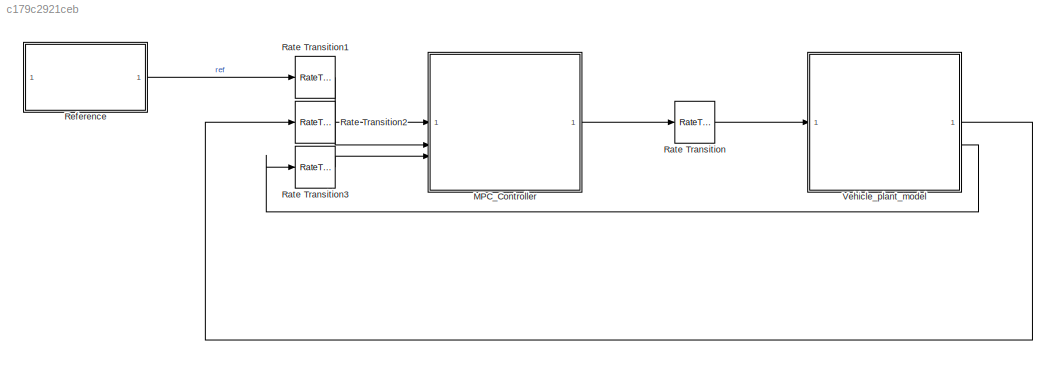
MODEL slx_c179c2921ceb
KIND model
BLOCK [ModelReference] MPC_Controller
  ModelNameDialog = Multiple_MPC_Controller.slx
  ModelReferenceVersion = 8.0
BLOCK [RateTransition] Rate Transition
  OutPortSampleTime = TimeStep
BLOCK [RateTransition] Rate Transition1
  OutPortSampleTime = TimeStep
BLOCK [RateTransition] Rate Transition2
  OutPortSampleTime = TimeStep
BLOCK [RateTransition] Rate Transition3
  OutPortSampleTime = TimeStep
BLOCK [SubSystem] Reference
  ReferencedSubsystem = Reference_vehicle
BLOCK [SubSystem] Vehicle_plant_model
  ReferencedSubsystem = Vehicle_plant_model
LINE MPC_Controller:1 -> Rate Transition:1
LINE Rate Transition1:1 -> MPC_Controller:1
LINE Rate Transition2:1 -> MPC_Controller:2
LINE Rate Transition3:1 -> MPC_Controller:3
LINE Rate Transition:1 -> Vehicle_plant_model:1
LINE Reference:1 -> Rate Transition1:1
LINE Vehicle_plant_model:1 -> Rate Transition2:1
LINE Vehicle_plant_model:2 -> Rate Transition3:1
